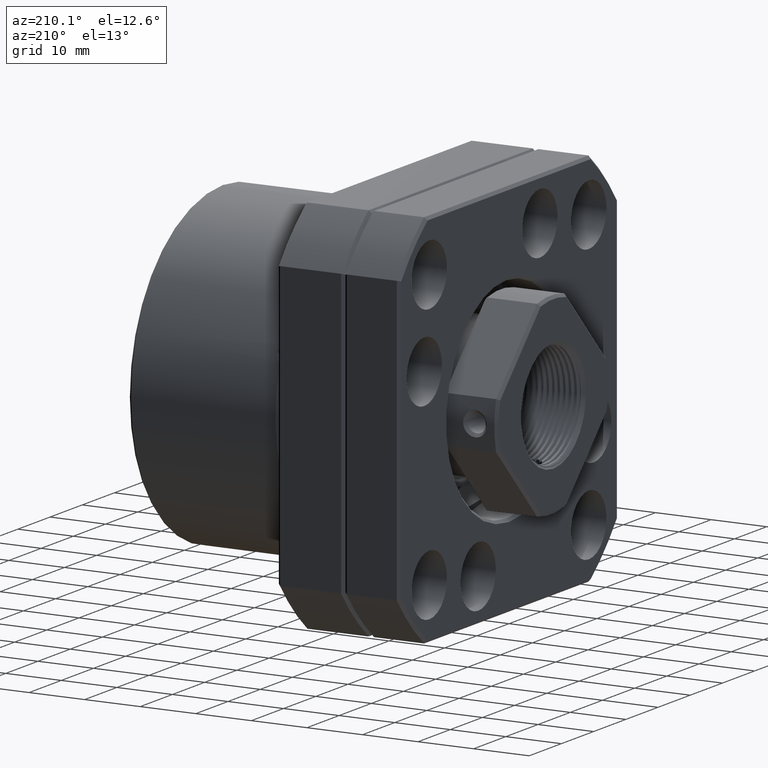
[diagram: clean part render]
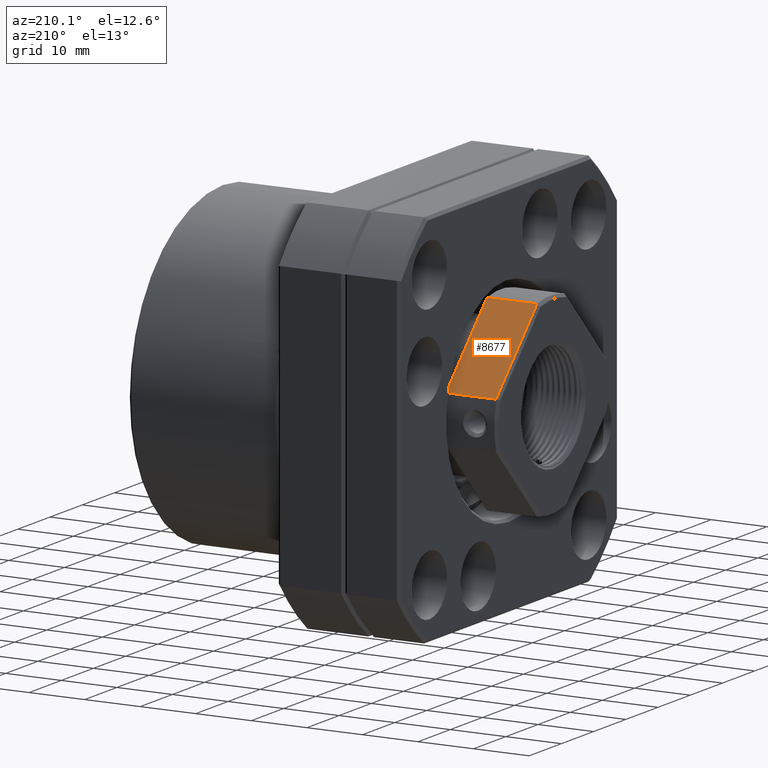
[diagram: same view with one face highlighted and labeled with its STEP entity id]
A machine part, auxiliary view. The second image highlights one B-rep face of the part: STEP entity #8677.
In plain terms, the highlighted planar face has unit normal (-0, 0.7071, 0.7071).
Its self-contained STEP definition (entity closure, byte-faithful):
#6955 = CARTESIAN_POINT ( 'NONE',  ( -8.500000000000010700, 16.98037610978920100, 4.232827325807203800 ) ) ;
#8567 = VERTEX_POINT ( 'NONE', #13854 ) ;
#8597 = EDGE_CURVE ( 'NONE', #22022, #8567, #13937, .T. ) ;
#8611 = EDGE_CURVE ( 'NONE', #8613, #8615, #13968, .T. ) ;
#8613 = VERTEX_POINT ( 'NONE', #13959 ) ;
#8615 = VERTEX_POINT ( 'NONE', #13958 ) ;
#8677 = ADVANCED_FACE ( 'NONE', ( #14045 ), #14044, .T. ) ;
#8679 = EDGE_LOOP ( 'NONE', ( #8681, #8684, #8688, #8691 ) ) ;
#8681 = ORIENTED_EDGE ( 'NONE', *, *, #8597, .T. ) ;
#8684 = ORIENTED_EDGE ( 'NONE', *, *, #8686, .T. ) ;
#8686 = EDGE_CURVE ( 'NONE', #8567, #8613, #14091, .T. ) ;
#8688 = ORIENTED_EDGE ( 'NONE', *, *, #8611, .T. ) ;
#8691 = ORIENTED_EDGE ( 'NONE', *, *, #8692, .T. ) ;
#8692 = EDGE_CURVE ( 'NONE', #8615, #22022, #14081, .T. ) ;
#13854 = CARTESIAN_POINT ( 'NONE',  ( -17.49999999999999300, 16.98037610978919800, 4.232827325807203800 ) ) ;
#13934 = DIRECTION ( 'NONE',  ( -1.000000000000000000, -2.465190328815661900E-032, 4.617340812406241300E-048 ) ) ;
#13935 = VECTOR ( 'NONE', #13934, 1000.000000000000000 ) ;
#13936 = CARTESIAN_POINT ( 'NONE',  ( 23.67746478873239400, 16.98037610978919800, 4.232827325807203800 ) ) ;
#13937 = LINE ( 'NONE', #13936, #13935 ) ;
#13958 = CARTESIAN_POINT ( 'NONE',  ( -8.500000000000007100, 4.232827325807229500, 16.98037610978919100 ) ) ;
#13959 = CARTESIAN_POINT ( 'NONE',  ( -17.50000000000000000, 4.232827325807229500, 16.98037610978919100 ) ) ;
#13965 = DIRECTION ( 'NONE',  ( 1.000000000000000000, 2.465190328815661900E-032, -4.617340812406241300E-048 ) ) ;
#13966 = VECTOR ( 'NONE', #13965, 1000.000000000000000 ) ;
#13967 = CARTESIAN_POINT ( 'NONE',  ( 23.67746478873239400, 4.232827325807229500, 16.98037610978919100 ) ) ;
#13968 = LINE ( 'NONE', #13967, #13966 ) ;
#14039 = DIRECTION ( 'NONE',  ( 1.324422281451354100E-016, -0.7071067811865470200, 0.7071067811865481300 ) ) ;
#14040 = DIRECTION ( 'NONE',  ( -4.930380657631323800E-032, 0.7071067811865481300, 0.7071067811865470200 ) ) ;
#14041 = AXIS2_PLACEMENT_3D ( 'NONE', #14043, #14040, #14039 ) ;
#14043 = CARTESIAN_POINT ( 'NONE',  ( -6.999999999999999100, 21.21320343559638000, 3.046848000578937300E-015 ) ) ;
#14044 = PLANE ( 'NONE',  #14041 ) ;
#14045 = FACE_OUTER_BOUND ( 'NONE', #8679, .T. ) ;
#14078 = DIRECTION ( 'NONE',  ( 0.0000000000000000000, 0.7071067811865470200, -0.7071067811865481300 ) ) ;
#14079 = VECTOR ( 'NONE', #14078, 1000.000000000000000 ) ;
#14080 = CARTESIAN_POINT ( 'NONE',  ( -8.500000000000007100, 16.98037610978919400, 4.232827325807198400 ) ) ;
#14081 = LINE ( 'NONE', #14080, #14079 ) ;
#14088 = DIRECTION ( 'NONE',  ( 0.0000000000000000000, -0.7071067811865470200, 0.7071067811865481300 ) ) ;
#14089 = VECTOR ( 'NONE', #14088, 1000.000000000000000 ) ;
#14090 = CARTESIAN_POINT ( 'NONE',  ( -17.49999999999999600, 4.232827325807226000, 16.98037610978918400 ) ) ;
#14091 = LINE ( 'NONE', #14090, #14089 ) ;
#22022 = VERTEX_POINT ( 'NONE', #6955 ) ;